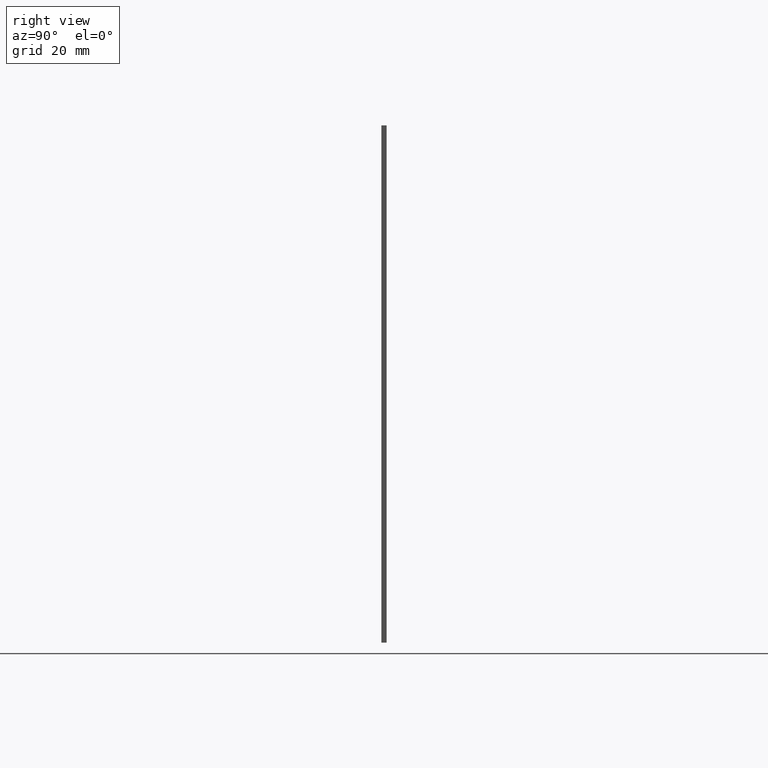
[diagram: clean part render]
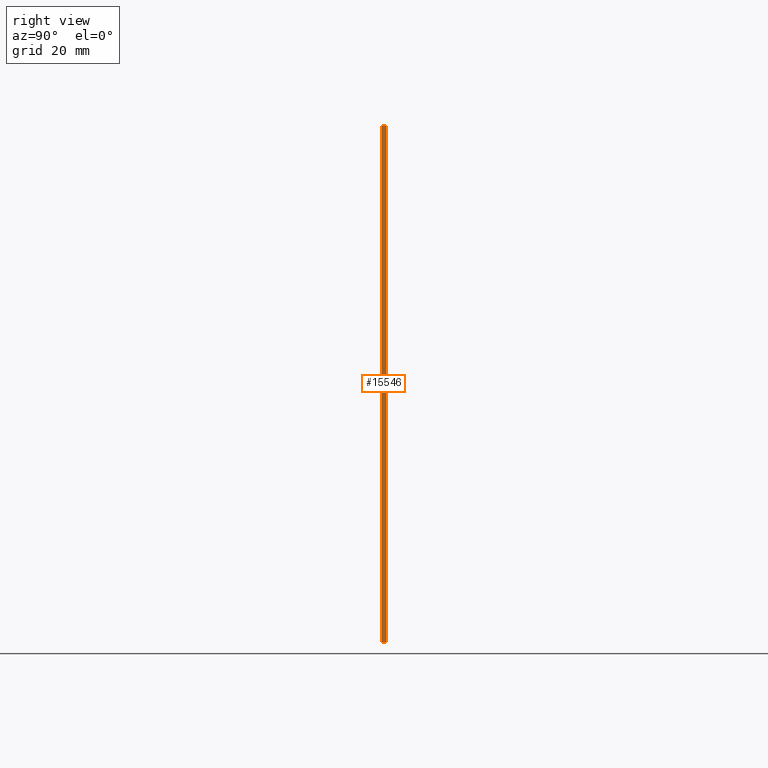
[diagram: same view with one face highlighted and labeled with its STEP entity id]
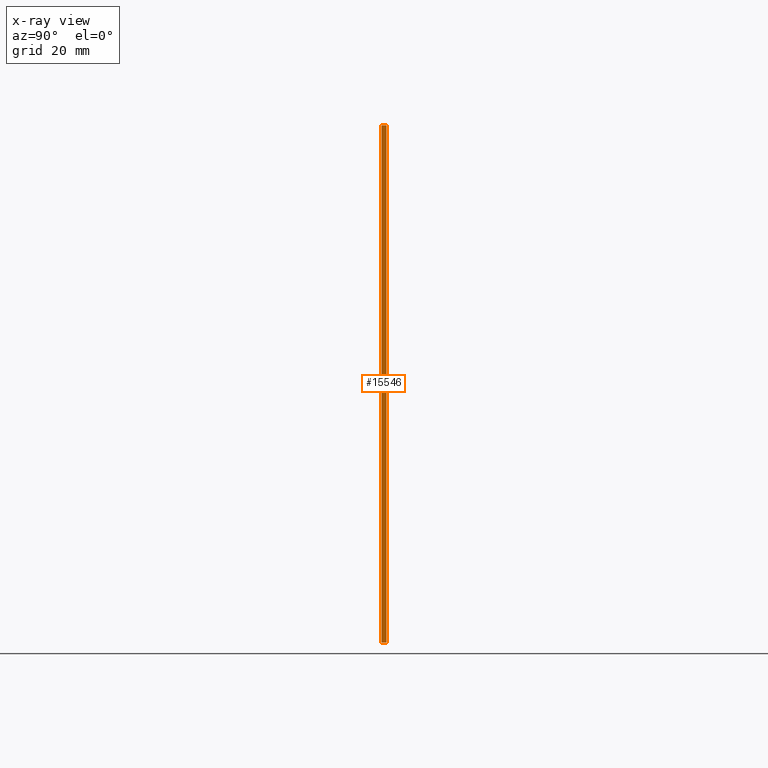
[diagram: x-ray of the same camera — body ghosted, the highlighted face saturated]
A machine part, right view. The second image highlights one B-rep face of the part: STEP entity #15546.
The next image is the same camera in x-ray: the body ghosted, the highlighted face saturated — about 0% of this face is hidden behind the body in this view.
In plain terms, the highlighted planar face has unit normal (-1, 0, 0).
Its self-contained STEP definition (entity closure, byte-faithful):
#302 = EDGE_LOOP ( 'NONE', ( #1509, #2421, #16846, #6536 ) ) ;
#1135 = CARTESIAN_POINT ( 'NONE',  ( 49.99999999999997158, 0.5000000000000000000, -50.00000000000000711 ) ) ;
#1509 = ORIENTED_EDGE ( 'NONE', *, *, #15464, .T. ) ;
#2288 = VECTOR ( 'NONE', #15470, 1000.000000000000000 ) ;
#2294 = VERTEX_POINT ( 'NONE', #3045 ) ;
#2421 = ORIENTED_EDGE ( 'NONE', *, *, #3048, .F. ) ;
#3045 = CARTESIAN_POINT ( 'NONE',  ( 49.99999999999999289, 0.5000000000000000000, 49.99999999999999289 ) ) ;
#3048 = EDGE_CURVE ( 'NONE', #9266, #8408, #6491, .T. ) ;
#3214 = CARTESIAN_POINT ( 'NONE',  ( 49.99999999999997158, -0.5000000000000000000, -50.00000000000000711 ) ) ;
#3331 = FACE_OUTER_BOUND ( 'NONE', #302, .T. ) ;
#4428 = VECTOR ( 'NONE', #9077, 1000.000000000000000 ) ;
#5038 = CARTESIAN_POINT ( 'NONE',  ( 49.99999999999999289, 0.5000000000000000000, 49.99999999999999289 ) ) ;
#5799 = CARTESIAN_POINT ( 'NONE',  ( 49.99999999999997158, -0.5000000000000000000, -50.00000000000000711 ) ) ;
#6491 = LINE ( 'NONE', #1135, #4428 ) ;
#6536 = ORIENTED_EDGE ( 'NONE', *, *, #10551, .T. ) ;
#7056 = VECTOR ( 'NONE', #9487, 1000.000000000000000 ) ;
#7473 = LINE ( 'NONE', #5038, #7056 ) ;
#8408 = VERTEX_POINT ( 'NONE', #5799 ) ;
#9077 = DIRECTION ( 'NONE',  ( -0.000000000000000000, -1.000000000000000000, -0.000000000000000000 ) ) ;
#9078 = CARTESIAN_POINT ( 'NONE',  ( 49.99999999999997158, 0.5000000000000000000, -50.00000000000000711 ) ) ;
#9266 = VERTEX_POINT ( 'NONE', #10355 ) ;
#9419 = CARTESIAN_POINT ( 'NONE',  ( 49.99999999999999289, -0.5000000000000000000, 49.99999999999999289 ) ) ;
#9487 = DIRECTION ( 'NONE',  ( -0.000000000000000000, -1.000000000000000000, -0.000000000000000000 ) ) ;
#10355 = CARTESIAN_POINT ( 'NONE',  ( 49.99999999999997158, 0.5000000000000000000, -50.00000000000000711 ) ) ;
#10368 = DIRECTION ( 'NONE',  ( 2.081668171172168513E-16, 0.000000000000000000, 1.000000000000000000 ) ) ;
#10551 = EDGE_CURVE ( 'NONE', #2294, #15992, #7473, .T. ) ;
#11799 = VECTOR ( 'NONE', #16438, 1000.000000000000000 ) ;
#12808 = CARTESIAN_POINT ( 'NONE',  ( 49.99999999999997158, 0.5000000000000000000, -50.00000000000000711 ) ) ;
#12856 = LINE ( 'NONE', #12808, #2288 ) ;
#14316 = DIRECTION ( 'NONE',  ( -1.000000000000000000, 0.000000000000000000, 2.081668171172168513E-16 ) ) ;
#14382 = EDGE_CURVE ( 'NONE', #2294, #9266, #12856, .T. ) ;
#14958 = AXIS2_PLACEMENT_3D ( 'NONE', #9078, #14316, #10368 ) ;
#15464 = EDGE_CURVE ( 'NONE', #15992, #8408, #15722, .T. ) ;
#15470 = DIRECTION ( 'NONE',  ( -2.081668171172168513E-16, -0.000000000000000000, -1.000000000000000000 ) ) ;
#15546 = ADVANCED_FACE ( 'NONE', ( #3331 ), #16609, .F. ) ;
#15722 = LINE ( 'NONE', #3214, #11799 ) ;
#15992 = VERTEX_POINT ( 'NONE', #9419 ) ;
#16438 = DIRECTION ( 'NONE',  ( -2.081668171172168513E-16, -0.000000000000000000, -1.000000000000000000 ) ) ;
#16609 = PLANE ( 'NONE',  #14958 ) ;
#16846 = ORIENTED_EDGE ( 'NONE', *, *, #14382, .F. ) ;